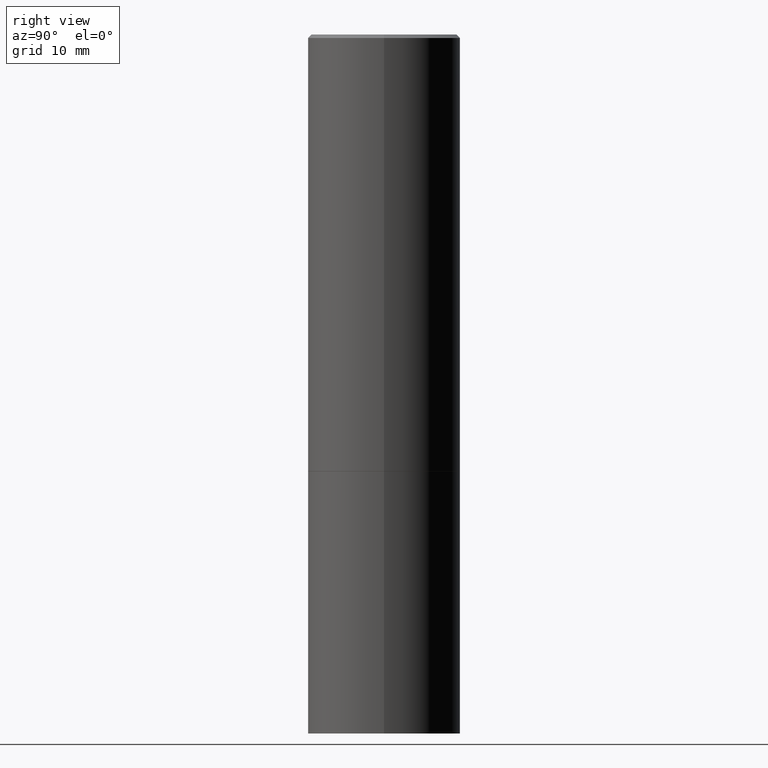
[diagram: clean part render]
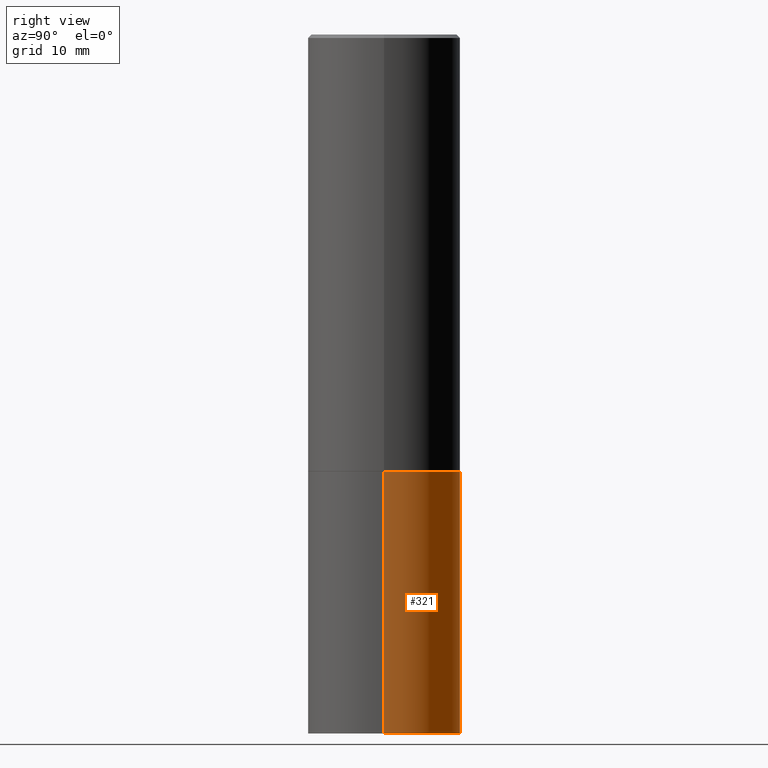
[diagram: same view with one face highlighted and labeled with its STEP entity id]
A machine part, right view. The second image highlights one B-rep face of the part: STEP entity #321.
In plain terms, the highlighted cylindrical surface (partial cylindrical patch) has radius 11.1125 mm, axis along (-0, 0, 1).
Its self-contained STEP definition (entity closure, byte-faithful):
#7 = CARTESIAN_POINT ( 'NONE',  ( 0.4375000000000000000, -3.055046171487741686E-15, 2.133327339410721769E-29 ) ) ;
#13 = CARTESIAN_POINT ( 'NONE',  ( -0.4375000000000000000, 3.108624468950438313E-15, -2.152034101986521245E-29 ) ) ;
#23 = EDGE_CURVE ( 'NONE', #236, #94, #259, .T. ) ;
#38 = AXIS2_PLACEMENT_3D ( 'NONE', #210, #150, #160 ) ;
#56 = EDGE_CURVE ( 'NONE', #94, #319, #139, .T. ) ;
#58 = CARTESIAN_POINT ( 'NONE',  ( 0.4375000000000000000, -1.702097152686032402E-14, -4.000000000000000000 ) ) ;
#91 = CIRCLE ( 'NONE', #38, 0.4375000000000000000 ) ;
#94 = VERTEX_POINT ( 'NONE', #224 ) ;
#97 = DIRECTION ( 'NONE',  ( 1.000000000000000000, -6.982962677686266711E-15, 4.876176775795935232E-29 ) ) ;
#102 = DIRECTION ( 'NONE',  ( -2.445468806185136877E-29, 3.491481338843145188E-15, 1.000000000000000000 ) ) ;
#121 = FACE_OUTER_BOUND ( 'NONE', #283, .T. ) ;
#139 = LINE ( 'NONE', #13, #358 ) ;
#150 = DIRECTION ( 'NONE',  ( -2.445468806185136597E-29, 3.491481338843145583E-15, 1.000000000000000000 ) ) ;
#160 = DIRECTION ( 'NONE',  ( 1.000000000000000000, -6.982962677686265133E-15, 0.000000000000000000 ) ) ;
#167 = DIRECTION ( 'NONE',  ( 1.000000000000000000, -6.982962677686267499E-15, 0.000000000000000000 ) ) ;
#177 = CARTESIAN_POINT ( 'NONE',  ( 0.4375000000000000000, -1.178374951859560505E-14, -2.500000000000000000 ) ) ;
#180 = CARTESIAN_POINT ( 'NONE',  ( 0.000000000000000000, 0.000000000000000000, 0.000000000000000000 ) ) ;
#184 = CARTESIAN_POINT ( 'NONE',  ( -0.4375000000000000000, -8.238689882289784535E-15, -2.500000000000000000 ) ) ;
#203 = VECTOR ( 'NONE', #235, 39.37007874015748143 ) ;
#210 = CARTESIAN_POINT ( 'NONE',  ( 6.113672015462842613E-29, -8.728703347107864943E-15, -2.500000000000000000 ) ) ;
#224 = CARTESIAN_POINT ( 'NONE',  ( -0.4375000000000000000, -8.238689882289784535E-15, -4.000000000000000000 ) ) ;
#225 = EDGE_CURVE ( 'NONE', #236, #253, #314, .T. ) ;
#227 = AXIS2_PLACEMENT_3D ( 'NONE', #335, #270, #167 ) ;
#235 = DIRECTION ( 'NONE',  ( -2.445468806185136877E-29, 3.491481338843145188E-15, 1.000000000000000000 ) ) ;
#236 = VERTEX_POINT ( 'NONE', #58 ) ;
#253 = VERTEX_POINT ( 'NONE', #177 ) ;
#258 = ORIENTED_EDGE ( 'NONE', *, *, #225, .F. ) ;
#259 = CIRCLE ( 'NONE', #227, 0.4375000000000000000 ) ;
#261 = ORIENTED_EDGE ( 'NONE', *, *, #23, .T. ) ;
#262 = CYLINDRICAL_SURFACE ( 'NONE', #308, 0.4375000000000000000 ) ;
#265 = EDGE_CURVE ( 'NONE', #253, #319, #91, .T. ) ;
#270 = DIRECTION ( 'NONE',  ( -2.445468806185136597E-29, 3.491481338843145583E-15, 1.000000000000000000 ) ) ;
#283 = EDGE_LOOP ( 'NONE', ( #261, #324, #347, #258 ) ) ;
#308 = AXIS2_PLACEMENT_3D ( 'NONE', #180, #351, #97 ) ;
#314 = LINE ( 'NONE', #7, #203 ) ;
#319 = VERTEX_POINT ( 'NONE', #184 ) ;
#321 = ADVANCED_FACE ( 'NONE', ( #121 ), #262, .T. ) ;
#324 = ORIENTED_EDGE ( 'NONE', *, *, #56, .T. ) ;
#335 = CARTESIAN_POINT ( 'NONE',  ( 9.781875224740546387E-29, -1.396592535537258233E-14, -4.000000000000000000 ) ) ;
#347 = ORIENTED_EDGE ( 'NONE', *, *, #265, .F. ) ;
#351 = DIRECTION ( 'NONE',  ( -2.445468806185136597E-29, 3.491481338843145583E-15, 1.000000000000000000 ) ) ;
#358 = VECTOR ( 'NONE', #102, 39.37007874015748143 ) ;